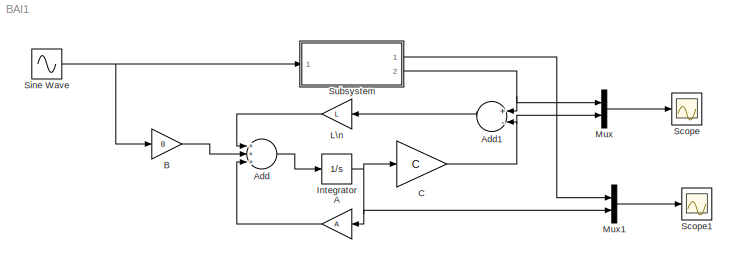
MODEL BAI1
KIND model
BLOCK [Gain] A
  Gain = A
  Multiplication = Matrix(K*u) (u vector)
  OutDataTypeStr = Inherit: Inherit via internal rule
  ParamDataTypeStr = Inherit: Inherit via internal rule
  SID = 15
  SaturateOnIntegerOverflow = off
BLOCK [Sum] Add
  InputSameDT = off
  Inputs = +++
  OutDataTypeStr = Inherit: Inherit via internal rule
  Ports = [3, 1]
  SID = 13
  SaturateOnIntegerOverflow = off
BLOCK [Sum] Add1
  InputSameDT = off
  Inputs = +-
  OutDataTypeStr = Inherit: Inherit via internal rule
  Ports = [2, 1]
  SID = 18
  SaturateOnIntegerOverflow = off
BLOCK [Gain] B
  Gain = B
  Multiplication = Matrix(K*u) (u vector)
  OutDataTypeStr = Inherit: Inherit via internal rule
  ParamDataTypeStr = Inherit: Inherit via internal rule
  SID = 12
  SaturateOnIntegerOverflow = off
BLOCK [Gain] C
  Gain = C
  Multiplication = Matrix(K*u) (u vector)
  OutDataTypeStr = Inherit: Inherit via internal rule
  ParamDataTypeStr = Inherit: Inherit via internal rule
  SID = 17
  SaturateOnIntegerOverflow = off
BLOCK [Integrator] Integrator
  InitialCondition = [0;0]
  Ports = [1, 1]
  SID = 16
BLOCK [Gain] L\n
  Gain = L
  Multiplication = Matrix(K*u) (u vector)
  OutDataTypeStr = Inherit: Inherit via internal rule
  ParamDataTypeStr = Inherit: Inherit via internal rule
  SID = 14
  SaturateOnIntegerOverflow = off
BLOCK [Mux] Mux
  DisplayOption = bar
  Inputs = 2
  Ports = [2, 1]
  SID = 19
BLOCK [Mux] Mux1
  DisplayOption = bar
  Inputs = 2
  Ports = [2, 1]
  SID = 21
BLOCK [Scope] Scope
  NumInputPorts = 1
  Ports = [1]
  SID = 20
  ScopeSpecificationString = Simulink.scopes.TimeScopeBlockCfg('CurrentConfiguration', extmgr.ConfigurationSet(extmgr.Configuration('Core','General UI',true),extmgr.Configuration('Core','Source UI',true),extmgr.Configuration('Sources','WiredSimulink',true,'DataLoggingSaveFormat','Array','DataLoggingDecimation','1'),extmgr.Configuration('Visuals','Time Domain',true,'SerializedDisplays',{struct('MinYLimReal','-1.8819','MaxYLimR...<+1614ch>
BLOCK [Scope] Scope1
  NumInputPorts = 1
  Ports = [1]
  SID = 22
  ScopeSpecificationString = Simulink.scopes.TimeScopeBlockCfg('CurrentConfiguration', extmgr.ConfigurationSet(extmgr.Configuration('Core','General UI',true),extmgr.Configuration('Core','Source UI',true),extmgr.Configuration('Sources','WiredSimulink',true,'DataLoggingVariableName','ScopeData1','DataLoggingSaveFormat','Array','DataLoggingDecimation','1'),extmgr.Configuration('Visuals','Time Domain',true,'SerializedDisplays',{s...<+1710ch>
BLOCK [Sin] Sine Wave
  Frequency = 2*pi*0.1
  Ports = [0, 1]
  SID = 11
  SampleTime = 0
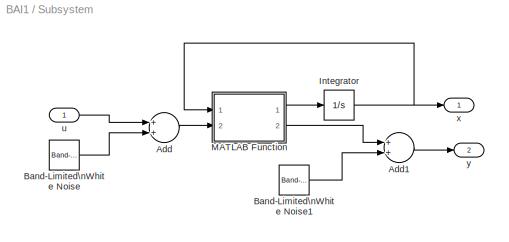
BLOCK [SubSystem] Subsystem
  Ports = [1, 2]
  RequestExecContextInheritance = off
  SID = 1
  Variant = off
BLOCK [Sum] Subsystem/Add
  InputSameDT = off
  OutDataTypeStr = Inherit: Inherit via internal rule
  Ports = [2, 1]
  SID = 6
  SaturateOnIntegerOverflow = off
BLOCK [Sum] Subsystem/Add1
  InputSameDT = off
  OutDataTypeStr = Inherit: Inherit via internal rule
  Ports = [2, 1]
  SID = 9
  SaturateOnIntegerOverflow = off
BLOCK [Reference] Subsystem/Band-Limited\nWhite Noise  REF=simulink/Sources/Band-Limited\nWhite Noise
  Cov = [0.0001]
  Ports = [0, 1]
  SID = 7
  SourceBlock = simulink/Sources/Band-Limited\nWhite Noise
  SourceProductBaseCode = SL
  SourceProductName = Simulink
  SourceType = Band-Limited White Noise.
  Ts = 0.01
  VectorParams1D = on
  seed = [23341]
BLOCK [Reference] Subsystem/Band-Limited\nWhite Noise1  REF=simulink/Sources/Band-Limited\nWhite Noise
  Cov = [0.001]
  Ports = [0, 1]
  SID = 8
  SourceBlock = simulink/Sources/Band-Limited\nWhite Noise
  SourceProductBaseCode = SL
  SourceProductName = Simulink
  SourceType = Band-Limited White Noise.
  Ts = 0.01
  VectorParams1D = on
  seed = [23341]
BLOCK [Integrator] Subsystem/Integrator
  InitialCondition = [0.2;0.3]
  Ports = [1, 1]
  SID = 5
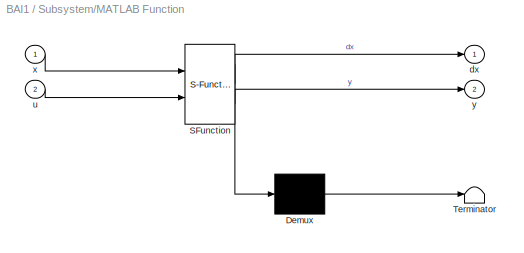
BLOCK [SubSystem] Subsystem/MATLAB Function
  ErrorFcn = Stateflow.Translate.translate
  PermitHierarchicalResolution = ExplicitOnly
  Ports = [2, 2]
  RequestExecContextInheritance = off
  SFBlockType = MATLAB Function
  SID = 4
  TreatAsAtomicUnit = on
  Variant = off
BLOCK [Demux] Subsystem/MATLAB Function/ Demux 
  Outputs = 1
  Ports = [1, 1]
  SID = 4::20
BLOCK [S-Function] Subsystem/MATLAB Function/ SFunction 
  EnableBusSupport = on
  FunctionName = sf_sfun
  PortCounts = [2 3]
  Ports = [2, 3]
  SFcnIsStateOwnerBlock = off
  SFunctionDeploymentMode = off
  SID = 4::19
  Tag = Stateflow S-Function BAI1 2
BLOCK [Terminator] Subsystem/MATLAB Function/ Terminator 
  SID = 4::21
BLOCK [Outport] Subsystem/MATLAB Function/dx
  IconDisplay = Port number
  SID = 4::23
BLOCK [Inport] Subsystem/MATLAB Function/u
  IconDisplay = Port number
  Port = 2
  SID = 4::1
BLOCK [Inport] Subsystem/MATLAB Function/x
  IconDisplay = Port number
  SID = 4::22
BLOCK [Outport] Subsystem/MATLAB Function/y
  IconDisplay = Port number
  Port = 2
  SID = 4::5
BLOCK [Inport] Subsystem/u
  IconDisplay = Port number
  SID = 2
BLOCK [Outport] Subsystem/x
  IconDisplay = Port number
  SID = 3
BLOCK [Outport] Subsystem/y
  IconDisplay = Port number
  Port = 2
  SID = 10
LINE A:1 -> Add:3
LINE Add1:1 -> L\n:1
LINE Add:1 -> Integrator:1
LINE B:1 -> Add:2
NET C:1 -> Add1:2, Mux:2
NET Integrator:1 -> A:1, C:1, Mux1:2
LINE L\n:1 -> Add:1
LINE Mux1:1 -> Scope1:1
LINE Mux:1 -> Scope:1
NET Sine Wave:1 -> B:1, Subsystem:1
LINE Subsystem/Add1:1 -> Subsystem/y:1
LINE Subsystem/Add:1 -> Subsystem/MATLAB Function:2
LINE Subsystem/Band-Limited\nWhite Noise1:1 -> Subsystem/Add1:2
LINE Subsystem/Band-Limited\nWhite Noise:1 -> Subsystem/Add:2
NET Subsystem/Integrator:1 -> Subsystem/MATLAB Function:1, Subsystem/x:1
LINE Subsystem/MATLAB Function/ Demux :1 -> Subsystem/MATLAB Function/ Terminator :1
LINE Subsystem/MATLAB Function/ SFunction :1 -> Subsystem/MATLAB Function/ Demux :1
LINE Subsystem/MATLAB Function/ SFunction :2 -> Subsystem/MATLAB Function/dx:1
LINE Subsystem/MATLAB Function/ SFunction :3 -> Subsystem/MATLAB Function/y:1
LINE Subsystem/MATLAB Function/u:1 -> Subsystem/MATLAB Function/ SFunction :2
LINE Subsystem/MATLAB Function/x:1 -> Subsystem/MATLAB Function/ SFunction :1
LINE Subsystem/MATLAB Function:1 -> Subsystem/Integrator:1
LINE Subsystem/MATLAB Function:2 -> Subsystem/Add1:1
LINE Subsystem/u:1 -> Subsystem/Add:1
LINE Subsystem:1 -> Mux1:1
NET Subsystem:2 -> Add1:1, Mux:1
note: NET lines group one-source signal fan-out (src -> all destinations, sorted); 1:1 wires keep LINE
CHART Subsystem/MATLAB Function states=1 transitions=1
  STATE_LABEL 'eML_blk_kernel()'
